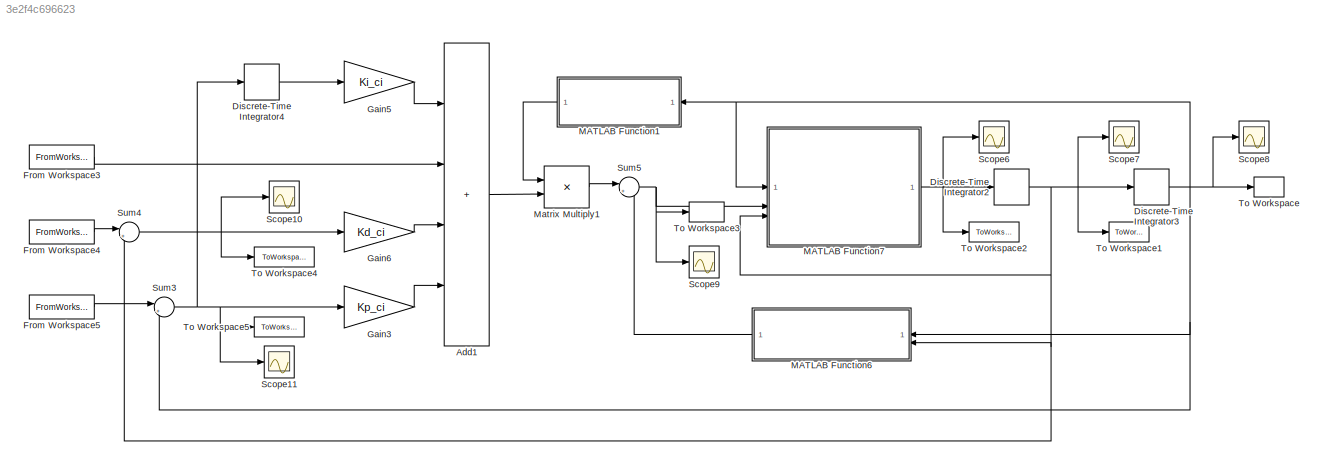
MODEL slx_3e2f4c696623
KIND model
CONFIG AbsTol = auto
CONFIG EnableMultiTasking = off
CONFIG FixedStep = auto
CONFIG MaxStep = auto
CONFIG MinStep = auto
CONFIG RelTol = 1e-3
CONFIG SampleTimeConstraint = Unconstrained
CONFIG SolverName = VariableStepAuto
CONFIG StartTime = 0.0
CONFIG StopTime = 40
BLOCK [Sum] Add1
  IconShape = rectangular
  Inputs = ++++
BLOCK [DiscreteIntegrator] Discrete-Time Integrator2
  ICPrevOutput = DiscIntNeverNeededParam
  ICPrevScaledInput = DiscIntNeverNeededParam
  InitialCondition = [0 0 0 0]'
  InitialConditionSetting = Auto
  SampleTime = -1
BLOCK [DiscreteIntegrator] Discrete-Time Integrator3
  ICPrevOutput = DiscIntNeverNeededParam
  ICPrevScaledInput = DiscIntNeverNeededParam
  InitialCondition = [theta1_0 theta2_0 -0.25 0]'
  InitialConditionSetting = Auto
  SampleTime = -1
BLOCK [DiscreteIntegrator] Discrete-Time Integrator4
  ICPrevOutput = DiscIntNeverNeededParam
  ICPrevScaledInput = DiscIntNeverNeededParam
  InitialCondition = [0 0 0 0]'
  InitialConditionSetting = Auto
  SampleTime = -1
BLOCK [FromWorkspace] From Workspace3
  SampleTime = T
  VariableName = q_d_dot_dot
BLOCK [FromWorkspace] From Workspace4
  SampleTime = T
  VariableName = q_d_dot
BLOCK [FromWorkspace] From Workspace5
  SampleTime = T
  VariableName = q_d
BLOCK [Gain] Gain3
  Gain = Kp_ci
  Multiplication = Matrix(K*u)
BLOCK [Gain] Gain5
  Gain = Ki_ci
  Multiplication = Matrix(K*u)
BLOCK [Gain] Gain6
  Gain = Kd_ci
  Multiplication = Matrix(K*u)
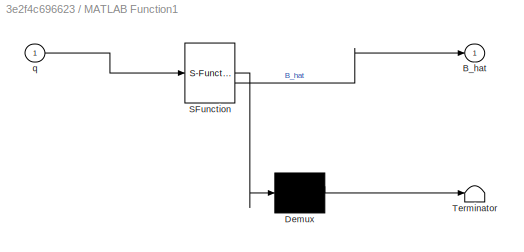
BLOCK [SubSystem] MATLAB Function1
  ErrorFcn = Stateflow.Translate.translate
  LibrarySourceBlock = simulink/User-Defined\nFunctions/MATLAB Function
  NameLocation = top
  PermitHierarchicalResolution = ExplicitOnly
  SFBlockType = MATLAB Function
  TreatAsAtomicUnit = on
BLOCK [Demux] MATLAB Function1/ Demux 
  Outputs = 1
BLOCK [S-Function] MATLAB Function1/ SFunction 
  EnableBusSupport = on
  FunctionName = sf_sfun
  PortCounts = [1 2]
  SFcnIsStateOwnerBlock = off
  SFunctionDeploymentMode = off
  Tag = Stateflow S-Function 2
BLOCK [Terminator] MATLAB Function1/ Terminator 
BLOCK [Outport] MATLAB Function1/B_hat
BLOCK [Inport] MATLAB Function1/q
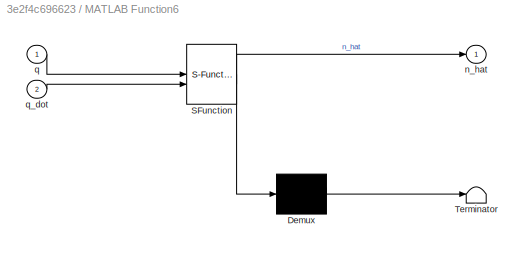
BLOCK [SubSystem] MATLAB Function6
  ErrorFcn = Stateflow.Translate.translate
  LibrarySourceBlock = simulink/User-Defined\nFunctions/MATLAB Function
  NameLocation = top
  PermitHierarchicalResolution = ExplicitOnly
  SFBlockType = MATLAB Function
  TreatAsAtomicUnit = on
BLOCK [Demux] MATLAB Function6/ Demux 
  Outputs = 1
BLOCK [S-Function] MATLAB Function6/ SFunction 
  EnableBusSupport = on
  FunctionName = sf_sfun
  PortCounts = [2 2]
  SFcnIsStateOwnerBlock = off
  SFunctionDeploymentMode = off
  Tag = Stateflow S-Function 6
BLOCK [Terminator] MATLAB Function6/ Terminator 
BLOCK [Outport] MATLAB Function6/n_hat
BLOCK [Inport] MATLAB Function6/q
BLOCK [Inport] MATLAB Function6/q_dot
  Port = 2
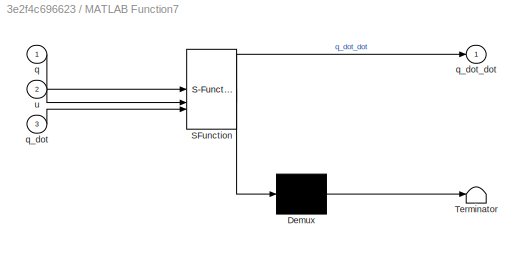
BLOCK [SubSystem] MATLAB Function7
  ErrorFcn = Stateflow.Translate.translate
  LibrarySourceBlock = simulink/User-Defined\nFunctions/MATLAB Function
  PermitHierarchicalResolution = ExplicitOnly
  SFBlockType = MATLAB Function
  TreatAsAtomicUnit = on
BLOCK [Demux] MATLAB Function7/ Demux 
  Outputs = 1
BLOCK [S-Function] MATLAB Function7/ SFunction 
  EnableBusSupport = on
  FunctionName = sf_sfun
  PortCounts = [3 2]
  SFcnIsStateOwnerBlock = off
  SFunctionDeploymentMode = off
  Tag = Stateflow S-Function 7
BLOCK [Terminator] MATLAB Function7/ Terminator 
BLOCK [Inport] MATLAB Function7/q
BLOCK [Inport] MATLAB Function7/q_dot
  Port = 3
BLOCK [Outport] MATLAB Function7/q_dot_dot
BLOCK [Inport] MATLAB Function7/u
  Port = 2
BLOCK [Product] Matrix Multiply1
  Multiplication = Matrix(*)
BLOCK [Scope] Scope10
  Floating = off
  NumInputPorts = 1
  ScopeSpecificationString = Simulink.scopes.TimeScopeBlockCfg('CurrentConfiguration', extmgr.ConfigurationSet(extmgr.Configuration('Core','General UI',true),extmgr.Configuration('Core','Source UI',true),extmgr.Configuration('Sources','WiredSimulink',true,'DataLoggingVariableName','ScopeData5'),extmgr.Configuration('Visuals','Time Domain',true,'SerializedDisplays',{struct('MinYLimReal','-0.03319','MaxYLimReal','0.01046','YLab...<+1417ch>
BLOCK [Scope] Scope11
  Floating = off
  NumInputPorts = 1
  ScopeSpecificationString = Simulink.scopes.TimeScopeBlockCfg('CurrentConfiguration', extmgr.ConfigurationSet(extmgr.Configuration('Core','General UI',true),extmgr.Configuration('Core','Source UI',true),extmgr.Configuration('Sources','WiredSimulink',true,'DataLoggingVariableName','ScopeData6'),extmgr.Configuration('Visuals','Time Domain',true,'SerializedDisplays',{struct('MinYLimReal','-0.0019','MaxYLimReal','0.00087','YLabe...<+1413ch>
BLOCK [Scope] Scope6
  Floating = off
  NumInputPorts = 1
  ScopeSpecificationString = Simulink.scopes.TimeScopeBlockCfg('CurrentConfiguration', extmgr.ConfigurationSet(extmgr.Configuration('Core','General UI',true),extmgr.Configuration('Core','Source UI',true),extmgr.Configuration('Sources','WiredSimulink',true,'DataLoggingVariableName','ScopeData1'),extmgr.Configuration('Visuals','Time Domain',true,'SerializedDisplays',{struct('MinYLimReal','-2.18153','MaxYLimReal','8.166','YLabel...<+1468ch>
BLOCK [Scope] Scope7
  Floating = off
  NumInputPorts = 1
  ScopeSpecificationString = Simulink.scopes.TimeScopeBlockCfg('CurrentConfiguration', extmgr.ConfigurationSet(extmgr.Configuration('Core','General UI',true),extmgr.Configuration('Core','Source UI',true),extmgr.Configuration('Sources','WiredSimulink',true,'DataLoggingVariableName','ScopeData2'),extmgr.Configuration('Visuals','Time Domain',true),extmgr.Configuration('Tools','Plot Navigation',true),extmgr.Configuration('Tools',...<+40ch>
BLOCK [Scope] Scope8
  Floating = off
  NumInputPorts = 1
  ScopeSpecificationString = Simulink.scopes.TimeScopeBlockCfg('CurrentConfiguration', extmgr.ConfigurationSet(extmgr.Configuration('Core','General UI',true),extmgr.Configuration('Core','Source UI',true),extmgr.Configuration('Sources','WiredSimulink',true,'DataLoggingVariableName','ScopeData3'),extmgr.Configuration('Visuals','Time Domain',true,'SerializedDisplays',{struct('MinYLimReal','-2.18153','MaxYLimReal','8.166','YLabel...<+1468ch>
BLOCK [Scope] Scope9
  Floating = off
  NumInputPorts = 1
  ScopeSpecificationString = Simulink.scopes.TimeScopeBlockCfg('CurrentConfiguration', extmgr.ConfigurationSet(extmgr.Configuration('Core','General UI',true),extmgr.Configuration('Core','Source UI',true),extmgr.Configuration('Sources','WiredSimulink',true,'DataLoggingVariableName','ScopeData4'),extmgr.Configuration('Visuals','Time Domain',true,'SerializedDisplays',{struct('MinYLimReal','-35.01798','MaxYLimReal','112.89089','Y...<+1427ch>
BLOCK [Sum] Sum3
  Inputs = |+-
BLOCK [Sum] Sum4
  Inputs = |+-
BLOCK [Sum] Sum5
  Inputs = |++
BLOCK [ToWorkspace] To Workspace
  FixptAsFi = on
  MaxDataPoints = inf
  SampleTime = -1
  SaveFormat = Structure With Time
  VariableName = q
BLOCK [ToWorkspace] To Workspace1
  FixptAsFi = on
  MaxDataPoints = inf
  SampleTime = -1
  SaveFormat = Structure With Time
  VariableName = q_dot
BLOCK [ToWorkspace] To Workspace2
  FixptAsFi = on
  MaxDataPoints = inf
  SampleTime = -1
  SaveFormat = Structure With Time
  VariableName = q_dot_dot
BLOCK [ToWorkspace] To Workspace3
  FixptAsFi = on
  MaxDataPoints = inf
  SampleTime = -1
  SaveFormat = Structure With Time
  VariableName = tau
BLOCK [ToWorkspace] To Workspace4
  FixptAsFi = on
  MaxDataPoints = inf
  SampleTime = -1
  SaveFormat = Structure With Time
  VariableName = q_tilde_dot
BLOCK [ToWorkspace] To Workspace5
  FixptAsFi = on
  MaxDataPoints = inf
  SampleTime = -1
  SaveFormat = Structure With Time
  VariableName = q_tilde
LINE Add1:1 -> Matrix Multiply1:2
NET Discrete-Time Integrator2:1 -> Discrete-Time Integrator3:1, MATLAB Function6:2, MATLAB Function7:3, Scope7:1, Sum4:2, To Workspace1:1
NET Discrete-Time Integrator3:1 -> MATLAB Function1:1, MATLAB Function6:1, MATLAB Function7:1, Scope8:1, Sum3:2, To Workspace:1
LINE Discrete-Time Integrator4:1 -> Gain5:1
LINE From Workspace3:1 -> Add1:2
LINE From Workspace4:1 -> Sum4:1
LINE From Workspace5:1 -> Sum3:1
LINE Gain3:1 -> Add1:4
LINE Gain5:1 -> Add1:1
LINE Gain6:1 -> Add1:3
LINE MATLAB Function1:1 -> Matrix Multiply1:1
LINE MATLAB Function6:1 -> Sum5:2
NET MATLAB Function7:1 -> Discrete-Time Integrator2:1, Scope6:1, To Workspace2:1
LINE Matrix Multiply1:1 -> Sum5:1
NET Sum3:1 -> Discrete-Time Integrator4:1, Gain3:1, Scope11:1, To Workspace5:1
NET Sum4:1 -> Gain6:1, Scope10:1, To Workspace4:1
NET Sum5:1 -> MATLAB Function7:2, Scope9:1, To Workspace3:1
note: NET lines group one-source signal fan-out (src -> all destinations, sorted); 1:1 wires keep LINE
CHART MATLAB Function1 states=1 transitions=1
  STATE_LABEL 'eML_blk_kernel()'
  STATE_LABEL 'SCRIPT:\nfunction B_hat = compensazione_B(q)\n\n    q1 = q(1);\n    q2 = q(2);\n    \n    B = [10*(cos(q1)/2 + (cos(q1)*cos(q2))/2 - (sin(q1)*sin(q2))/2)^2 + 20*(cos(q1)/2 + (cos(q1)*cos(q2))/4 - (sin(q1)*sin(q2))/4)^2 + 10*(sin(q1)/2 + (cos(q1)*sin(q2))/2 + (cos(q2)*sin(q1))/2)^2 + 20*(sin(q1)/2 + (cos(q1)*sin(q2))/4 + (cos(q2)*sin(q1))/4)^2 + (5*cos(q1)^2)/4 + (5*sin(q1)^2)/4 + 4513/500, 10*((cos(q1)*...<+1247ch>'
CHART MATLAB Function6 states=1 transitions=1
  STATE_LABEL 'eML_blk_kernel()'
  STATE_LABEL 'SCRIPT:\nfunction n_hat = compensazione_n(q,q_dot)\n\n    % n_hat compensa solo la coppia di gravità\n    n_hat=[0;0;98.1;0];\nend'
CHART MATLAB Function7 states=1 transitions=1
  STATE_LABEL 'eML_blk_kernel()'
  STATE_LABEL 'SCRIPT:\nfunction q_dot_dot = manipolatore(q, u, q_dot)\n\n    q1 = q(1);\n    q2 = q(2);\n    q3 = q(3);\n    q4 = q(4);\n    \n    q_dot1 = q_dot(1);\n    q_dot2 = q_dot(2);\n    q_dot3 = q_dot(3);\n    q_dot4 = q_dot(4);\n    \n    B = [14*(cos(q1)/2 + (cos(q1)*cos(q2))/2 - (sin(q1)*sin(q2))/2)^2 + 20*(cos(q1)/2 + (cos(q1)*cos(q2))/4 - (sin(q1)*sin(q2))/4)^2 + 14*(sin(q1)/2 + (cos(q1)*sin(q2))/2 + (cos(q2)*...<+3608ch>'
CHART  states=0 transitions=0
CHART  states=0 transitions=0
CHART  states=0 transitions=0
